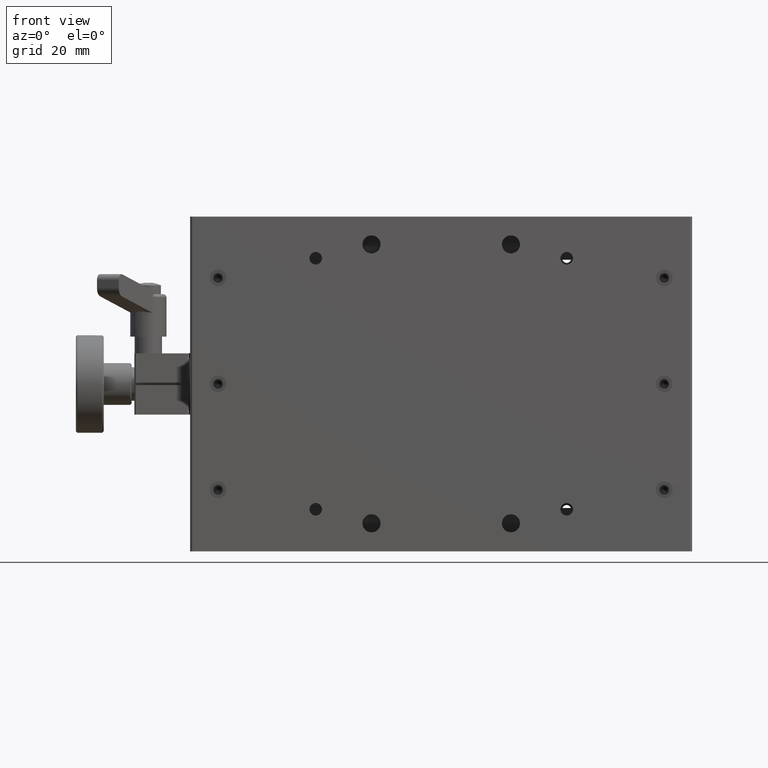
[diagram: clean part render]
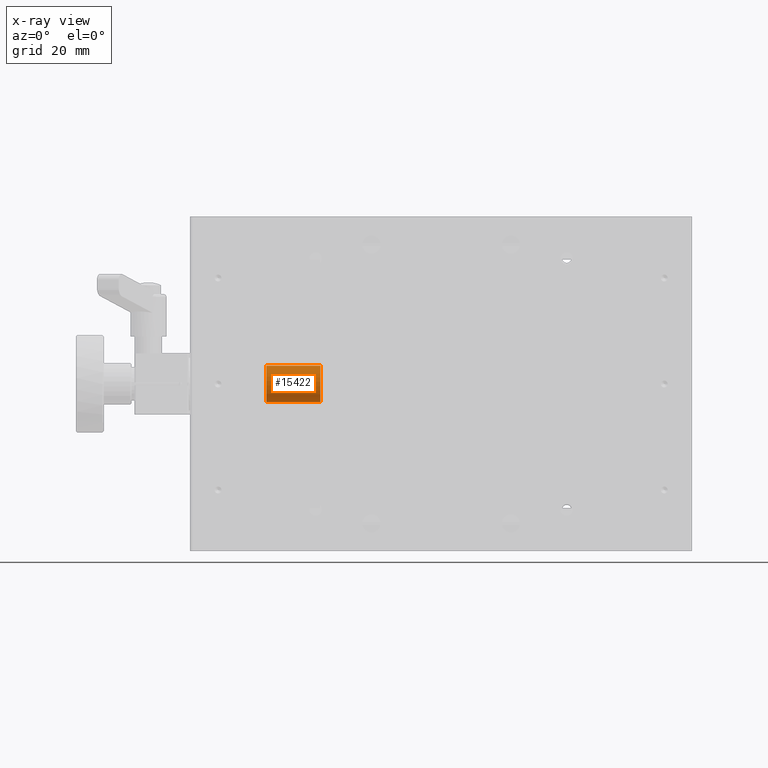
[diagram: x-ray — body ghosted, one internal face saturated and labeled with its STEP entity id]
A machine part, front view, then the same camera in x-ray: the body is ghosted and one INTERNAL B-rep face — a face not visible from any outside direction — is saturated and labeled: STEP entity #15422.
In plain terms, the highlighted cylindrical surface (bore or boss wall) has radius 6.5 mm, axis along (1, 0, 0).
Its self-contained STEP definition (entity closure, byte-faithful):
#1476 = DIRECTION ( 'NONE',  ( 0.000000000000000000, 0.000000000000000000, -1.000000000000000000 ) ) ;
#1509 = EDGE_LOOP ( 'NONE', ( #13631 ) ) ;
#1646 = CARTESIAN_POINT ( 'NONE',  ( -41.00000000000000000, 54.40999999999999659, -60.00000000000000000 ) ) ;
#4083 = FACE_OUTER_BOUND ( 'NONE', #1509, .T. ) ;
#4097 = EDGE_CURVE ( 'NONE', #6517, #6517, #11382, .T. ) ;
#4767 = CARTESIAN_POINT ( 'NONE',  ( 27.30000000002519300, 54.40999999999999659, -60.00000000000000000 ) ) ;
#5457 = EDGE_LOOP ( 'NONE', ( #15251 ) ) ;
#5709 = DIRECTION ( 'NONE',  ( -1.000000000000000000, -0.000000000000000000, -0.000000000000000000 ) ) ;
#6517 = VERTEX_POINT ( 'NONE', #13315 ) ;
#7045 = CARTESIAN_POINT ( 'NONE',  ( 46.69999999999999574, 54.40999999999999659, -60.00000000000000000 ) ) ;
#8915 = CARTESIAN_POINT ( 'NONE',  ( 46.69999999999999574, 54.40999999999999659, -66.50000000000000000 ) ) ;
#9217 = CYLINDRICAL_SURFACE ( 'NONE', #12055, 6.500000000000005329 ) ;
#9601 = CIRCLE ( 'NONE', #12006, 6.500000000000005329 ) ;
#9703 = EDGE_CURVE ( 'NONE', #12446, #12446, #9601, .T. ) ;
#11014 = DIRECTION ( 'NONE',  ( -1.000000000000000000, -0.000000000000000000, -0.000000000000000000 ) ) ;
#11382 = CIRCLE ( 'NONE', #15946, 6.499999999962257746 ) ;
#12006 = AXIS2_PLACEMENT_3D ( 'NONE', #7045, #5709, #15887 ) ;
#12055 = AXIS2_PLACEMENT_3D ( 'NONE', #1646, #13002, #1476 ) ;
#12446 = VERTEX_POINT ( 'NONE', #8915 ) ;
#13002 = DIRECTION ( 'NONE',  ( 1.000000000000000000, 0.000000000000000000, 0.000000000000000000 ) ) ;
#13315 = CARTESIAN_POINT ( 'NONE',  ( 27.30000000002519300, 54.40999999999999659, -66.49999999996225597 ) ) ;
#13631 = ORIENTED_EDGE ( 'NONE', *, *, #9703, .T. ) ;
#14611 = FACE_OUTER_BOUND ( 'NONE', #5457, .T. ) ;
#15251 = ORIENTED_EDGE ( 'NONE', *, *, #4097, .F. ) ;
#15422 = ADVANCED_FACE ( 'NONE', ( #4083, #14611 ), #9217, .T. ) ;
#15887 = DIRECTION ( 'NONE',  ( 0.000000000000000000, 0.000000000000000000, -1.000000000000000000 ) ) ;
#15946 = AXIS2_PLACEMENT_3D ( 'NONE', #4767, #11014, #16289 ) ;
#16289 = DIRECTION ( 'NONE',  ( 0.000000000000000000, 0.000000000000000000, -1.000000000000000000 ) ) ;